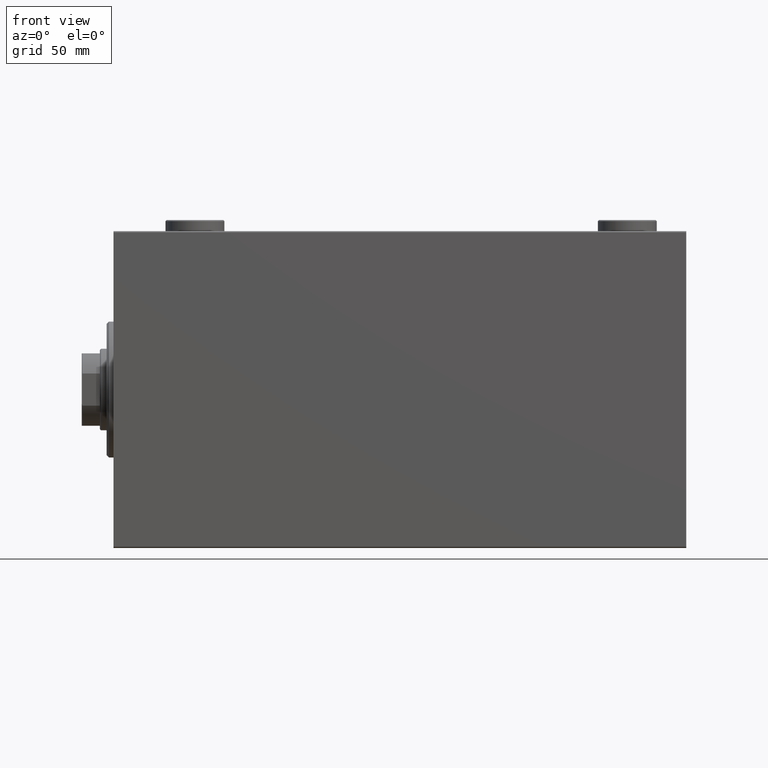
[diagram: clean part render]
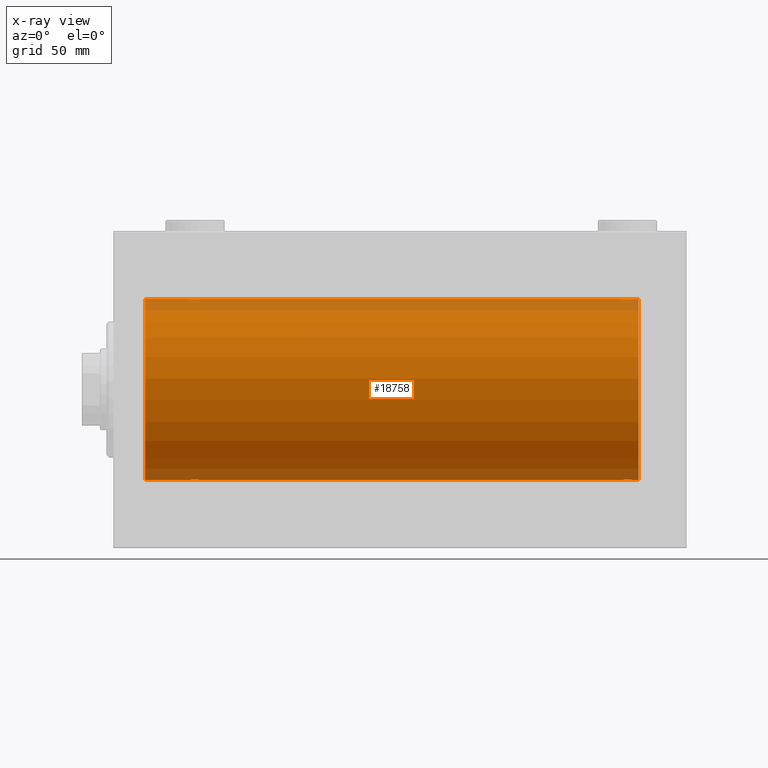
[diagram: x-ray — body ghosted, one internal face saturated and labeled with its STEP entity id]
A machine part, front view, then the same camera in x-ray: the body is ghosted and one INTERNAL B-rep face — a face not visible from any outside direction — is saturated and labeled: STEP entity #18758.
In plain terms, the highlighted cylindrical surface (partial cylindrical patch) has radius 40 mm, axis along (-1, -0, -0).
Its self-contained STEP definition (entity closure, byte-faithful):
#245 = CARTESIAN_POINT ( 'NONE',  ( 225.4955691708654228, -2.602909538701757342, 39.91537030566259858 ) ) ;
#265 = CARTESIAN_POINT ( 'NONE',  ( 33.09574826348647036, -0.7773146824711042457, 39.99291453282344122 ) ) ;
#323 = CARTESIAN_POINT ( 'NONE',  ( 34.49911531595965641, -2.604941918888302954, -39.91523680494983495 ) ) ;
#395 = CARTESIAN_POINT ( 'NONE',  ( 224.0000000000000284, -1.564474717625772332E-14, -40.00000000000000000 ) ) ;
#427 = EDGE_CURVE ( 'NONE', #12347, #32120, #1401, .T. ) ;
#496 = CARTESIAN_POINT ( 'NONE',  ( 35.60477516546423971, -2.980272303779554210, 39.88883864243169342 ) ) ;
#551 = CARTESIAN_POINT ( 'NONE',  ( 36.77869523415741071, -2.903766417398228938, -39.89448096967571189 ) ) ;
#690 = DIRECTION ( 'NONE',  ( -1.000000000000000000, -0.000000000000000000, -0.000000000000000000 ) ) ;
#714 = CARTESIAN_POINT ( 'NONE',  ( 35.22130476584258219, -2.903766417398241373, 39.89448096967571189 ) ) ;
#834 = CARTESIAN_POINT ( 'NONE',  ( 224.3981127187150548, -1.506322235190799663, -39.97196309111975410 ) ) ;
#925 = CARTESIAN_POINT ( 'NONE',  ( 34.66775731134136151, -2.695129988695744938, 39.90917164320281785 ) ) ;
#1401 = LINE ( 'NONE', #44151, #29029 ) ;
#1532 = CARTESIAN_POINT ( 'NONE',  ( 227.7745567882635100, -2.904869018727220364, 39.89440043036669437 ) ) ;
#1765 = CARTESIAN_POINT ( 'NONE',  ( 225.1695517717760424, -2.384933850258109445, 39.92898715513240404 ) ) ;
#2032 = VECTOR ( 'NONE', #690, 1000.000000000000000 ) ;
#2094 = DIRECTION ( 'NONE',  ( 0.000000000000000000, 0.000000000000000000, 1.000000000000000000 ) ) ;
#2902 = LINE ( 'NONE', #42168, #7488 ) ;
#3201 = EDGE_CURVE ( 'NONE', #3704, #31128, #34894, .T. ) ;
#3329 = CARTESIAN_POINT ( 'NONE',  ( 232.0000000000000000, 0.000000000000000000, 40.00000000000000000 ) ) ;
#3336 = CARTESIAN_POINT ( 'NONE',  ( 34.67146355253701984, -2.696981015661916725, -39.90904630908466544 ) ) ;
#3452 = CARTESIAN_POINT ( 'NONE',  ( 39.00000000000000000, 4.898587181754971267E-15, -40.00000000000000000 ) ) ;
#3561 = EDGE_CURVE ( 'NONE', #22161, #25060, #30949, .T. ) ;
#3704 = VERTEX_POINT ( 'NONE', #3452 ) ;
#3705 = CARTESIAN_POINT ( 'NONE',  ( 225.6677573113414041, -2.695129988695745826, 39.90917164320281074 ) ) ;
#3724 = CARTESIAN_POINT ( 'NONE',  ( 232.0000000000000000, 4.898587196589412237E-15, -40.00000000000000000 ) ) ;
#3929 = CARTESIAN_POINT ( 'NONE',  ( 230.0000000000000284, 1.446721683758770418E-15, 40.00000000000000000 ) ) ;
#3978 = ORIENTED_EDGE ( 'NONE', *, *, #30114, .T. ) ;
#4004 = CARTESIAN_POINT ( 'NONE',  ( 33.30462992291564461, -1.331594428131640973, -39.97823692017209396 ) ) ;
#4157 = DIRECTION ( 'NONE',  ( 0.000000000000000000, 0.000000000000000000, 1.000000000000000000 ) ) ;
#4160 = CARTESIAN_POINT ( 'NONE',  ( 224.1533472698686467, -0.9668189122103342248, 39.98872185468384544 ) ) ;
#4299 = CARTESIAN_POINT ( 'NONE',  ( 225.1730981536759941, -2.387636253591828517, -39.92882473497732576 ) ) ;
#4661 = CARTESIAN_POINT ( 'NONE',  ( 224.0000000000000284, -1.564474717625772332E-14, -40.00000000000000000 ) ) ;
#5538 = ORIENTED_EDGE ( 'NONE', *, *, #22748, .F. ) ;
#6347 = EDGE_CURVE ( 'NONE', #32622, #6386, #35388, .T. ) ;
#6386 = VERTEX_POINT ( 'NONE', #32583 ) ;
#6404 = EDGE_CURVE ( 'NONE', #12347, #25060, #40779, .T. ) ;
#6429 = CARTESIAN_POINT ( 'NONE',  ( 230.0000000000000284, -0.1957844162750477512, -39.99999999999999289 ) ) ;
#7033 = CARTESIAN_POINT ( 'NONE',  ( 37.98461447812280056, -2.258217541132897743, -39.93644519243654400 ) ) ;
#7425 = CARTESIAN_POINT ( 'NONE',  ( 33.39566400087915810, -1.502129635934005059, 39.97212271185185983 ) ) ;
#7482 = CARTESIAN_POINT ( 'NONE',  ( 36.39522483453575319, -2.980272303779543108, -39.88883864243169342 ) ) ;
#7488 = VECTOR ( 'NONE', #38255, 1000.000000000000000 ) ;
#7552 = CARTESIAN_POINT ( 'NONE',  ( 224.0797382500835795, -0.7903958539027520214, -39.99381900068935636 ) ) ;
#7630 = CARTESIAN_POINT ( 'NONE',  ( 224.3027865941912466, -1.327859336864145590, 39.97836169682017982 ) ) ;
#7708 = CARTESIAN_POINT ( 'NONE',  ( 33.74170329679496660, -1.984537326394300250, -39.95097977400578060 ) ) ;
#7784 = CARTESIAN_POINT ( 'NONE',  ( 225.6714635525371477, -2.696981015661930936, -39.90904630908467254 ) ) ;
#7883 = CARTESIAN_POINT ( 'NONE',  ( 36.96489325853514885, -2.847401743820463516, 39.89859630624608400 ) ) ;
#8004 = CARTESIAN_POINT ( 'NONE',  ( 225.0186372048577539, -2.261082456166719101, -39.93628274425758207 ) ) ;
#8103 = CARTESIAN_POINT ( 'NONE',  ( 34.01538552187719944, -2.258217541132904405, 39.93644519243652979 ) ) ;
#8712 = CARTESIAN_POINT ( 'NONE',  ( 227.9648932585352554, -2.847401743820454190, 39.89859630624609821 ) ) ;
#8796 = CARTESIAN_POINT ( 'NONE',  ( 39.00000000000000711, -0.3964922677423706188, 40.00000000000000000 ) ) ;
#9263 = DIRECTION ( 'NONE',  ( -1.000000000000000000, -0.000000000000000000, -0.000000000000000000 ) ) ;
#9302 = EDGE_LOOP ( 'NONE', ( #24625, #30792, #32564, #14197, #24404, #3978, #34045, #11506, #28116, #38863, #29392, #5538 ) ) ;
#9486 = CARTESIAN_POINT ( 'NONE',  ( 38.60188728128493096, -1.506322235190783232, 39.97196309111975410 ) ) ;
#9504 = CARTESIAN_POINT ( 'NONE',  ( 232.0000000000000000, 0.000000000000000000, 40.00000000000000000 ) ) ;
#9831 = EDGE_CURVE ( 'NONE', #37434, #32120, #20720, .T. ) ;
#9886 = CARTESIAN_POINT ( 'NONE',  ( 230.0000000000000284, 1.446721683758770418E-15, 40.00000000000000000 ) ) ;
#10493 = CARTESIAN_POINT ( 'NONE',  ( 38.26097616994740491, -1.981471132463163531, -39.95113231465139592 ) ) ;
#10639 = CARTESIAN_POINT ( 'NONE',  ( 229.3825168091146907, -1.833695109615722352, 39.95828327492363030 ) ) ;
#10721 = CARTESIAN_POINT ( 'NONE',  ( 33.61748319088535908, -1.833695109615715468, -39.95828327492363741 ) ) ;
#10865 = CARTESIAN_POINT ( 'NONE',  ( 227.3910969250934215, -2.980812880639897688, 39.88879797994690080 ) ) ;
#10945 = CARTESIAN_POINT ( 'NONE',  ( 37.83044822822400022, -2.384933850258100563, -39.92898715513240404 ) ) ;
#11087 = CARTESIAN_POINT ( 'NONE',  ( 227.1956053107310254, -3.000157693440639761, 39.88732948994960736 ) ) ;
#11159 = EDGE_CURVE ( 'NONE', #6386, #30979, #20653, .T. ) ;
#11276 = EDGE_CURVE ( 'NONE', #30979, #3704, #2902, .T. ) ;
#11506 = ORIENTED_EDGE ( 'NONE', *, *, #427, .F. ) ;
#11906 = CARTESIAN_POINT ( 'NONE',  ( 226.2254432117366036, -2.904869018727228802, -39.89440043036669437 ) ) ;
#12347 = VERTEX_POINT ( 'NONE', #36844 ) ;
#12476 = CARTESIAN_POINT ( 'NONE',  ( 37.98136279514228875, -2.261082456166706667, 39.93628274425758207 ) ) ;
#12957 = LINE ( 'NONE', #9504, #19498 ) ;
#13573 = CARTESIAN_POINT ( 'NONE',  ( 229.6043359991208206, -1.502129635933991292, -39.97212271185184562 ) ) ;
#13959 = CARTESIAN_POINT ( 'NONE',  ( 37.33224268865864559, -2.695129988695734724, -39.90917164320281785 ) ) ;
#14120 = AXIS2_PLACEMENT_3D ( 'NONE', #35820, #25150, #4157 ) ;
#14197 = ORIENTED_EDGE ( 'NONE', *, *, #11276, .T. ) ;
#14250 = CARTESIAN_POINT ( 'NONE',  ( 228.8304482282240997, -2.384933850258119215, -39.92898715513241115 ) ) ;
#14322 = LINE ( 'NONE', #38833, #2032 ) ;
#14329 = CARTESIAN_POINT ( 'NONE',  ( 228.3285364474630796, -2.696981015661923387, 39.90904630908469386 ) ) ;
#14413 = CARTESIAN_POINT ( 'NONE',  ( 33.39811271871507614, -1.506322235190780345, -39.97196309111976120 ) ) ;
#14580 = CARTESIAN_POINT ( 'NONE',  ( 36.19560531073086196, -3.000157693440643314, 39.88732948994962157 ) ) ;
#14639 = CARTESIAN_POINT ( 'NONE',  ( 35.22544321173658943, -2.904869018727214591, -39.89440043036668015 ) ) ;
#14799 = CARTESIAN_POINT ( 'NONE',  ( 36.39109692509333627, -2.980812880639903906, 39.88879797994688658 ) ) ;
#15013 = CARTESIAN_POINT ( 'NONE',  ( 33.01898122889073051, -0.3904143323715982827, 39.99856256910221219 ) ) ;
#15616 = CARTESIAN_POINT ( 'NONE',  ( 228.5008846840404431, -2.604941918888313612, 39.91523680494984916 ) ) ;
#15705 = CARTESIAN_POINT ( 'NONE',  ( 37.50088468404035069, -2.604941918888316721, 39.91523680494982784 ) ) ;
#15945 = CARTESIAN_POINT ( 'NONE',  ( 38.25829670320504050, -1.984537326394306689, 39.95097977400579481 ) ) ;
#17257 = CARTESIAN_POINT ( 'NONE',  ( 230.0000000000000284, 4.898587181765226459E-15, -40.00000000000000000 ) ) ;
#17466 = VERTEX_POINT ( 'NONE', #3329 ) ;
#17863 = CARTESIAN_POINT ( 'NONE',  ( 38.60433599912083480, -1.502129635934001284, -39.97212271185185983 ) ) ;
#17935 = CARTESIAN_POINT ( 'NONE',  ( 224.0000000000000568, -0.3964922677423874386, -40.00000000000000711 ) ) ;
#18033 = CARTESIAN_POINT ( 'NONE',  ( 33.73902383005258088, -1.981471132463169083, 39.95113231465139592 ) ) ;
#18094 = CARTESIAN_POINT ( 'NONE',  ( 35.80439468926913804, -3.000157693440631324, -39.88732948994960026 ) ) ;
#18260 = CARTESIAN_POINT ( 'NONE',  ( 34.49556917086534469, -2.602909538701760450, 39.91537030566259148 ) ) ;
#18600 = CARTESIAN_POINT ( 'NONE',  ( 226.6089030749067206, -2.980812880639905682, -39.88879797994688658 ) ) ;
#18758 = ADVANCED_FACE ( 'NONE', ( #22631 ), #25857, .F. ) ;
#19308 = CARTESIAN_POINT ( 'NONE',  ( 224.0000000000000284, -1.482387970046064334E-23, 40.00000000000000000 ) ) ;
#19498 = VECTOR ( 'NONE', #37690, 1000.000000000000000 ) ;
#20492 = CARTESIAN_POINT ( 'NONE',  ( 229.9042517365135438, -0.7773146824710953640, -39.99291453282344122 ) ) ;
#20653 = B_SPLINE_CURVE_WITH_KNOTS ( 'NONE', 3,
 ( #17257, #6429, #30901, #20492, #34606, #45689, #13573, #27650, #35064, #28097, #14250, #42446, #35516, #22285, #29449, #28778, #25078, #21844, #18600, #11906, #29229, #7784, #39205, #4299, #8004, #28553, #25306, #834, #36420, #7552, #17935, #395 ),
 .UNSPECIFIED., .F., .F.,
 ( 4, 2, 2, 2, 2, 2, 2, 2, 2, 2, 2, 2, 2, 2, 2, 4 ),
 ( 0.009382660366305086222, 0.009968941372944120291, 0.01055522237958315609, 0.01114150338622219016, 0.01172778439286122423, 0.01231406539950026004, 0.01290034640613929584, 0.01348662741277832991, 0.01407290841941736745, 0.01465918942605640152, 0.01524547043269543732, 0.01583175143933447312, 0.01641803244597350719, 0.01700431345261254473, 0.01759059445925158227, 0.01876315647252968857 ),
 .UNSPECIFIED. ) ;
#20720 = CIRCLE ( 'NONE', #14120, 40.00000000000000000 ) ;
#21327 = CARTESIAN_POINT ( 'NONE',  ( 38.98101877110926239, -0.3904143323715944525, -39.99856256910221219 ) ) ;
#21488 = CARTESIAN_POINT ( 'NONE',  ( 33.61492399084644944, -1.830402106103519166, 39.95843610133493939 ) ) ;
#21544 = CARTESIAN_POINT ( 'NONE',  ( 36.20041286019198168, -2.999840380514735116, -39.88735335562824957 ) ) ;
#21593 = B_SPLINE_CURVE_WITH_KNOTS ( 'NONE', 3,
 ( #19308, #33419, #40123, #35824, #4160, #7630, #31884, #42750, #36673, #29694, #1765, #245, #3705, #42298, #22540, #35367, #26227, #11087, #10865, #1532, #8712, #14329, #15616, #25154, #43821, #24929, #10639, #38840, #42529, #39059, #35595, #3929 ),
 .UNSPECIFIED., .F., .F.,
 ( 4, 2, 2, 2, 2, 2, 2, 2, 2, 2, 2, 2, 2, 2, 2, 4 ),
 ( 0.009382660366305094896, 0.009968941372944130699, 0.01055522237958316650, 0.01114150338622220404, 0.01172778439286123985, 0.01231406539950027565, 0.01290034640613930972, 0.01348662741277834379, 0.01407290841941737959, 0.01465918942605641540, 0.01524547043269544946, 0.01583175143933448353, 0.01641803244597352107, 0.01700431345261255514, 0.01759059445925158921, 0.01876315647252969204 ),
 .UNSPECIFIED. ) ;
#21772 = CARTESIAN_POINT ( 'NONE',  ( 33.07973825008353685, -0.7903958539027368113, -39.99381900068937767 ) ) ;
#21844 = CARTESIAN_POINT ( 'NONE',  ( 226.8043946892691736, -3.000157693440647311, -39.88732948994960026 ) ) ;
#22113 = EDGE_CURVE ( 'NONE', #32622, #17466, #27720, .T. ) ;
#22161 = VERTEX_POINT ( 'NONE', #32762 ) ;
#22258 = VERTEX_POINT ( 'NONE', #9886 ) ;
#22285 = CARTESIAN_POINT ( 'NONE',  ( 227.9693834189446875, -2.845855236045358616, -39.89870693240651889 ) ) ;
#22517 = AXIS2_PLACEMENT_3D ( 'NONE', #39484, #32538, #24904 ) ;
#22540 = CARTESIAN_POINT ( 'NONE',  ( 226.2213047658425751, -2.903766417398230271, 39.89448096967571189 ) ) ;
#22631 = FACE_OUTER_BOUND ( 'NONE', #9302, .T. ) ;
#22633 = DIRECTION ( 'NONE',  ( -1.000000000000000000, -0.000000000000000000, -0.000000000000000000 ) ) ;
#22748 = EDGE_CURVE ( 'NONE', #17466, #22258, #12957, .T. ) ;
#23315 = CARTESIAN_POINT ( 'NONE',  ( 38.92026174991648446, -0.7903958539027378105, 39.99381900068937057 ) ) ;
#23925 = AXIS2_PLACEMENT_3D ( 'NONE', #39981, #29561, #2094 ) ;
#24404 = ORIENTED_EDGE ( 'NONE', *, *, #3201, .T. ) ;
#24625 = ORIENTED_EDGE ( 'NONE', *, *, #22113, .F. ) ;
#24788 = CARTESIAN_POINT ( 'NONE',  ( 32.99999999999999289, 4.710615435408541643E-15, -40.00000000000000000 ) ) ;
#24904 = DIRECTION ( 'NONE',  ( 0.000000000000000000, 0.000000000000000000, 1.000000000000000000 ) ) ;
#24929 = CARTESIAN_POINT ( 'NONE',  ( 229.2582967032050476, -1.984537326394308909, 39.95097977400577349 ) ) ;
#24949 = CARTESIAN_POINT ( 'NONE',  ( 33.15334726986861824, -0.9668189122103394428, 39.98872185468385254 ) ) ;
#25009 = CARTESIAN_POINT ( 'NONE',  ( 38.90425173651351543, -0.7773146824711002489, -39.99291453282344122 ) ) ;
#25060 = VERTEX_POINT ( 'NONE', #36225 ) ;
#25078 = CARTESIAN_POINT ( 'NONE',  ( 227.2004128601920740, -2.999840380514751104, -39.88735335562824957 ) ) ;
#25150 = DIRECTION ( 'NONE',  ( -1.000000000000000000, 0.000000000000000000, 0.000000000000000000 ) ) ;
#25154 = CARTESIAN_POINT ( 'NONE',  ( 228.8269018463241764, -2.387636253591820079, 39.92882473497732576 ) ) ;
#25174 = CARTESIAN_POINT ( 'NONE',  ( 32.99999999999999289, -1.483452932268112700E-23, 40.00000000000000000 ) ) ;
#25306 = CARTESIAN_POINT ( 'NONE',  ( 224.6174831908853378, -1.833695109615732788, -39.95828327492362320 ) ) ;
#25460 = CARTESIAN_POINT ( 'NONE',  ( 35.03510674146484405, -2.847401743820450193, -39.89859630624608400 ) ) ;
#25630 = CARTESIAN_POINT ( 'NONE',  ( 35.79958713980802543, -2.999840380514749327, 39.88735335562824247 ) ) ;
#25857 = CYLINDRICAL_SURFACE ( 'NONE', #23925, 40.00000000000000000 ) ;
#26077 = CARTESIAN_POINT ( 'NONE',  ( 38.69537007708435539, -1.331594428131644969, 39.97823692017208685 ) ) ;
#26227 = CARTESIAN_POINT ( 'NONE',  ( 226.7995871398080965, -2.999840380514742666, 39.88735335562825668 ) ) ;
#27650 = CARTESIAN_POINT ( 'NONE',  ( 229.3850760091535790, -1.830402106103507842, -39.95843610133493229 ) ) ;
#27720 = CIRCLE ( 'NONE', #22517, 40.00000000000000000 ) ;
#28097 = CARTESIAN_POINT ( 'NONE',  ( 228.9846144781228361, -2.258217541132907069, -39.93644519243653690 ) ) ;
#28116 = ORIENTED_EDGE ( 'NONE', *, *, #6404, .T. ) ;
#28487 = CARTESIAN_POINT ( 'NONE',  ( 39.00000000000000000, 4.898587181754971267E-15, -40.00000000000000000 ) ) ;
#28553 = CARTESIAN_POINT ( 'NONE',  ( 224.7417032967949524, -1.984537326394318457, -39.95097977400578770 ) ) ;
#28778 = CARTESIAN_POINT ( 'NONE',  ( 227.3952248345358385, -2.980272303779555543, -39.88883864243168631 ) ) ;
#28930 = CARTESIAN_POINT ( 'NONE',  ( 35.60890307490667794, -2.980812880639891027, -39.88879797994688658 ) ) ;
#29029 = VECTOR ( 'NONE', #22633, 1000.000000000000000 ) ;
#29229 = CARTESIAN_POINT ( 'NONE',  ( 226.0351067414649151, -2.847401743820463071, -39.89859630624608400 ) ) ;
#29392 = ORIENTED_EDGE ( 'NONE', *, *, #44674, .T. ) ;
#29449 = CARTESIAN_POINT ( 'NONE',  ( 227.7786952341575386, -2.903766417398240929, -39.89448096967571900 ) ) ;
#29561 = DIRECTION ( 'NONE',  ( -1.000000000000000000, -0.000000000000000000, -0.000000000000000000 ) ) ;
#29694 = CARTESIAN_POINT ( 'NONE',  ( 225.0153855218772208, -2.258217541132898631, 39.93644519243653690 ) ) ;
#30114 = EDGE_CURVE ( 'NONE', #31128, #37434, #14322, .T. ) ;
#30484 = CARTESIAN_POINT ( 'NONE',  ( 38.38251680911464092, -1.833695109615718133, 39.95828327492363741 ) ) ;
#30779 = DIRECTION ( 'NONE',  ( -1.000000000000000000, -0.000000000000000000, -0.000000000000000000 ) ) ;
#30792 = ORIENTED_EDGE ( 'NONE', *, *, #6347, .T. ) ;
#30901 = CARTESIAN_POINT ( 'NONE',  ( 229.9810187711093192, -0.3904143323715899005, -39.99856256910220509 ) ) ;
#30949 = LINE ( 'NONE', #45051, #35832 ) ;
#30979 = VERTEX_POINT ( 'NONE', #4661 ) ;
#31128 = VERTEX_POINT ( 'NONE', #37718 ) ;
#31884 = CARTESIAN_POINT ( 'NONE',  ( 224.3956640008792363, -1.502129635934003948, 39.97212271185186694 ) ) ;
#32120 = VERTEX_POINT ( 'NONE', #40161 ) ;
#32140 = CARTESIAN_POINT ( 'NONE',  ( 34.16955177177598557, -2.384933850258112997, 39.92898715513240404 ) ) ;
#32364 = CARTESIAN_POINT ( 'NONE',  ( 32.99999999999997868, -0.1957844162750557171, 40.00000000000000711 ) ) ;
#32538 = DIRECTION ( 'NONE',  ( -1.000000000000000000, 0.000000000000000000, 0.000000000000000000 ) ) ;
#32564 = ORIENTED_EDGE ( 'NONE', *, *, #11159, .T. ) ;
#32583 = CARTESIAN_POINT ( 'NONE',  ( 230.0000000000000284, 4.898587181765226459E-15, -40.00000000000000000 ) ) ;
#32622 = VERTEX_POINT ( 'NONE', #41488 ) ;
#32762 = CARTESIAN_POINT ( 'NONE',  ( 224.0000000000000284, -1.482387970046064334E-23, 40.00000000000000000 ) ) ;
#33419 = CARTESIAN_POINT ( 'NONE',  ( 223.9999999999999716, -0.1957844162750525807, 40.00000000000000000 ) ) ;
#34045 = ORIENTED_EDGE ( 'NONE', *, *, #9831, .T. ) ;
#34606 = CARTESIAN_POINT ( 'NONE',  ( 229.8466527301314102, -0.9668189122103328925, -39.98872185468383122 ) ) ;
#34894 = B_SPLINE_CURVE_WITH_KNOTS ( 'NONE', 3,
 ( #28487, #42151, #21327, #25009, #45619, #42378, #17863, #39361, #10493, #7033, #10945, #35449, #13959, #38687, #551, #7482, #21544, #18094, #28930, #14639, #25460, #3336, #323, #42827, #35225, #7708, #10721, #14413, #4004, #21772, #35904, #24788 ),
 .UNSPECIFIED., .F., .F.,
 ( 4, 2, 2, 2, 2, 2, 2, 2, 2, 2, 2, 2, 2, 2, 2, 4 ),
 ( 0.009382660366305108773, 0.009968941372944144577, 0.01055522237958318038, 0.01114150338622221618, 0.01172778439286125199, 0.01231406539950028606, 0.01290034640613932186, 0.01348662741277835767, 0.01407290841941739347, 0.01465918942605642927, 0.01524547043269546508, 0.01583175143933450088, 0.01641803244597353495, 0.01700431345261257249, 0.01759059445925161003, 0.01876315647252967816 ),
 .UNSPECIFIED. ) ;
#35064 = CARTESIAN_POINT ( 'NONE',  ( 229.2609761699474689, -1.981471132463170415, -39.95113231465138881 ) ) ;
#35225 = CARTESIAN_POINT ( 'NONE',  ( 34.01863720485771125, -2.261082456166699561, -39.93628274425758917 ) ) ;
#35367 = CARTESIAN_POINT ( 'NONE',  ( 226.6047751654642752, -2.980272303779546217, 39.88883864243170052 ) ) ;
#35388 = LINE ( 'NONE', #3724, #41800 ) ;
#35449 = CARTESIAN_POINT ( 'NONE',  ( 37.50443082913467663, -2.602909538701746683, -39.91537030566259858 ) ) ;
#35516 = CARTESIAN_POINT ( 'NONE',  ( 228.3322426886586527, -2.695129988695754708, -39.90917164320281074 ) ) ;
#35595 = CARTESIAN_POINT ( 'NONE',  ( 230.0000000000000853, -0.3964922677423700081, 40.00000000000001421 ) ) ;
#35820 = CARTESIAN_POINT ( 'NONE',  ( 13.99999999999998401, 0.000000000000000000, 0.000000000000000000 ) ) ;
#35824 = CARTESIAN_POINT ( 'NONE',  ( 224.0957482634864562, -0.7773146824711021363, 39.99291453282343412 ) ) ;
#35832 = VECTOR ( 'NONE', #9263, 1000.000000000000000 ) ;
#35904 = CARTESIAN_POINT ( 'NONE',  ( 33.00000000000000000, -0.3964922677423646791, -40.00000000000002132 ) ) ;
#36225 = CARTESIAN_POINT ( 'NONE',  ( 39.00000000000000000, 1.229131351128202115E-15, 40.00000000000000000 ) ) ;
#36420 = CARTESIAN_POINT ( 'NONE',  ( 224.3046299229157228, -1.331594428131654961, -39.97823692017210107 ) ) ;
#36673 = CARTESIAN_POINT ( 'NONE',  ( 224.7390238300525596, -1.981471132463162643, 39.95113231465138171 ) ) ;
#36844 = CARTESIAN_POINT ( 'NONE',  ( 32.99999999999999289, -1.483452932268112700E-23, 40.00000000000000000 ) ) ;
#37434 = VERTEX_POINT ( 'NONE', #44740 ) ;
#37453 = CARTESIAN_POINT ( 'NONE',  ( 39.00000000000000000, 1.229131351128202115E-15, 40.00000000000000000 ) ) ;
#37690 = DIRECTION ( 'NONE',  ( -1.000000000000000000, -0.000000000000000000, -0.000000000000000000 ) ) ;
#37718 = CARTESIAN_POINT ( 'NONE',  ( 32.99999999999999289, 4.710615435408541643E-15, -40.00000000000000000 ) ) ;
#38255 = DIRECTION ( 'NONE',  ( -1.000000000000000000, -0.000000000000000000, -0.000000000000000000 ) ) ;
#38687 = CARTESIAN_POINT ( 'NONE',  ( 36.96938341894463065, -2.845855236045339520, -39.89870693240651178 ) ) ;
#38833 = CARTESIAN_POINT ( 'NONE',  ( 232.0000000000000000, 4.898587196589412237E-15, -40.00000000000000000 ) ) ;
#38840 = CARTESIAN_POINT ( 'NONE',  ( 229.6018872812850020, -1.506322235190787895, 39.97196309111976831 ) ) ;
#38863 = ORIENTED_EDGE ( 'NONE', *, *, #3561, .F. ) ;
#39059 = CARTESIAN_POINT ( 'NONE',  ( 229.9202617499165342, -0.7903958539027363672, 39.99381900068937767 ) ) ;
#39205 = CARTESIAN_POINT ( 'NONE',  ( 225.4991153159597275, -2.604941918888322494, -39.91523680494982784 ) ) ;
#39361 = CARTESIAN_POINT ( 'NONE',  ( 38.38507600915353635, -1.830402106103513171, -39.95843610133493939 ) ) ;
#39484 = CARTESIAN_POINT ( 'NONE',  ( 232.0000000000000000, 0.000000000000000000, 0.000000000000000000 ) ) ;
#39530 = CARTESIAN_POINT ( 'NONE',  ( 36.77455678826340346, -2.904869018727227470, 39.89440043036668726 ) ) ;
#39757 = CARTESIAN_POINT ( 'NONE',  ( 37.32853644746297306, -2.696981015661931380, 39.90904630908467254 ) ) ;
#39981 = CARTESIAN_POINT ( 'NONE',  ( 232.0000000000000000, 0.000000000000000000, 0.000000000000000000 ) ) ;
#40123 = CARTESIAN_POINT ( 'NONE',  ( 224.0189812288907660, -0.3904143323715967839, 39.99856256910221219 ) ) ;
#40161 = CARTESIAN_POINT ( 'NONE',  ( 13.99999999999998401, 0.000000000000000000, 40.00000000000000000 ) ) ;
#40779 = B_SPLINE_CURVE_WITH_KNOTS ( 'NONE', 3,
 ( #25174, #32364, #15013, #265, #24949, #43220, #7425, #21488, #18033, #8103, #32140, #18260, #925, #42995, #714, #496, #25630, #14580, #14799, #39530, #7883, #39757, #15705, #43909, #12476, #15945, #30484, #9486, #26077, #23315, #8796, #37453 ),
 .UNSPECIFIED., .F., .F.,
 ( 4, 2, 2, 2, 2, 2, 2, 2, 2, 2, 2, 2, 2, 2, 2, 4 ),
 ( 0.009382660366305107039, 0.009968941372944146312, 0.01055522237958318385, 0.01114150338622222139, 0.01172778439286126066, 0.01231406539950029820, 0.01290034640613933400, 0.01348662741277837154, 0.01407290841941740908, 0.01465918942605644835, 0.01524547043269548589, 0.01583175143933452517, 0.01641803244597355924, 0.01700431345261259677, 0.01759059445925163431, 0.01876315647252970939 ),
 .UNSPECIFIED. ) ;
#41488 = CARTESIAN_POINT ( 'NONE',  ( 232.0000000000000000, 4.898587196589412237E-15, -40.00000000000000000 ) ) ;
#41800 = VECTOR ( 'NONE', #30779, 1000.000000000000000 ) ;
#42151 = CARTESIAN_POINT ( 'NONE',  ( 39.00000000000000000, -0.1957844162750518591, -40.00000000000000711 ) ) ;
#42168 = CARTESIAN_POINT ( 'NONE',  ( 232.0000000000000000, 4.898587196589412237E-15, -40.00000000000000000 ) ) ;
#42298 = CARTESIAN_POINT ( 'NONE',  ( 226.0306165810553125, -2.845855236045348402, 39.89870693240650468 ) ) ;
#42378 = CARTESIAN_POINT ( 'NONE',  ( 38.69721340580880309, -1.327859336864144257, -39.97836169682017982 ) ) ;
#42446 = CARTESIAN_POINT ( 'NONE',  ( 228.5044308291347477, -2.602909538701765779, -39.91537030566259148 ) ) ;
#42529 = CARTESIAN_POINT ( 'NONE',  ( 229.6953700770844478, -1.331594428131642527, 39.97823692017210107 ) ) ;
#42750 = CARTESIAN_POINT ( 'NONE',  ( 224.6149239908464210, -1.830402106103516280, 39.95843610133492518 ) ) ;
#42827 = CARTESIAN_POINT ( 'NONE',  ( 34.17309815367588044, -2.387636253591807201, -39.92882473497731866 ) ) ;
#42995 = CARTESIAN_POINT ( 'NONE',  ( 35.03061658105534093, -2.845855236045349290, 39.89870693240652599 ) ) ;
#43220 = CARTESIAN_POINT ( 'NONE',  ( 33.30278659419117560, -1.327859336864150253, 39.97836169682016561 ) ) ;
#43821 = CARTESIAN_POINT ( 'NONE',  ( 228.9813627951423030, -2.261082456166709775, 39.93628274425758207 ) ) ;
#43909 = CARTESIAN_POINT ( 'NONE',  ( 37.82690184632409824, -2.387636253591819635, 39.92882473497732576 ) ) ;
#44151 = CARTESIAN_POINT ( 'NONE',  ( 232.0000000000000000, 0.000000000000000000, 40.00000000000000000 ) ) ;
#44674 = EDGE_CURVE ( 'NONE', #22161, #22258, #21593, .T. ) ;
#44740 = CARTESIAN_POINT ( 'NONE',  ( 13.99999999999998401, 4.898587196589412237E-15, -40.00000000000000000 ) ) ;
#45051 = CARTESIAN_POINT ( 'NONE',  ( 232.0000000000000000, 0.000000000000000000, 40.00000000000000000 ) ) ;
#45619 = CARTESIAN_POINT ( 'NONE',  ( 38.84665273013136755, -0.9668189122103344468, -39.98872185468384544 ) ) ;
#45689 = CARTESIAN_POINT ( 'NONE',  ( 229.6972134058088386, -1.327859336864145590, -39.97836169682017271 ) ) ;